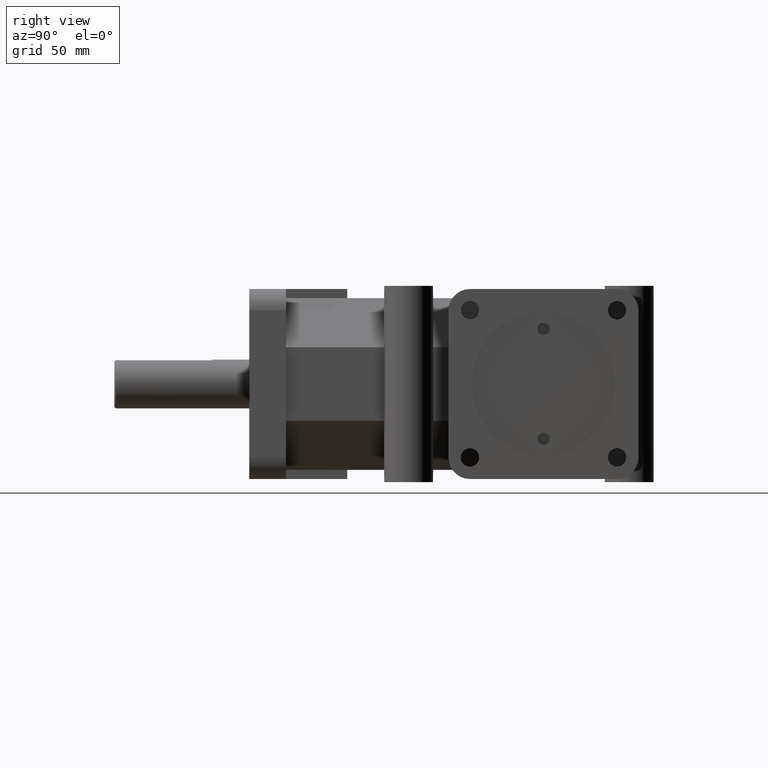
[diagram: clean part render]
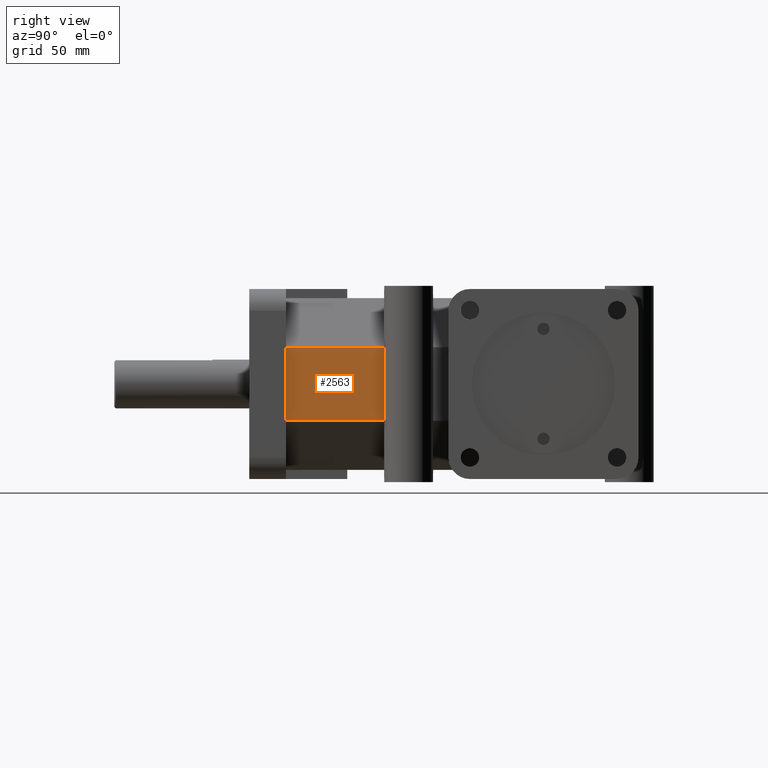
[diagram: same view with one face highlighted and labeled with its STEP entity id]
A machine part, right view. The second image highlights one B-rep face of the part: STEP entity #2563.
In plain terms, the highlighted planar face has unit normal (1, 0, 0).
Its self-contained STEP definition (entity closure, byte-faithful):
#333=FACE_OUTER_BOUND('',#511,.T.);
#511=EDGE_LOOP('',(#2208,#2209,#2210,#2211));
#760=LINE('',#4245,#1010);
#772=LINE('',#4269,#1022);
#780=LINE('',#4285,#1030);
#781=LINE('',#4286,#1031);
#1010=VECTOR('',#3478,1.);
#1022=VECTOR('',#3506,1.);
#1030=VECTOR('',#3524,1.);
#1031=VECTOR('',#3525,1.);
#1263=VERTEX_POINT('',#4203);
#1264=VERTEX_POINT('',#4207);
#1274=VERTEX_POINT('',#4268);
#1277=VERTEX_POINT('',#4284);
#1594=EDGE_CURVE('',#1264,#1263,#760,.T.);
#1606=EDGE_CURVE('',#1264,#1274,#772,.T.);
#1614=EDGE_CURVE('',#1277,#1263,#780,.T.);
#1615=EDGE_CURVE('',#1277,#1274,#781,.T.);
#2208=ORIENTED_EDGE('',*,*,#1594,.T.);
#2209=ORIENTED_EDGE('',*,*,#1614,.F.);
#2210=ORIENTED_EDGE('',*,*,#1615,.T.);
#2211=ORIENTED_EDGE('',*,*,#1606,.F.);
#2418=PLANE('',#2823);
#2563=ADVANCED_FACE('',(#333),#2418,.T.);
#2823=AXIS2_PLACEMENT_3D('',#4283,#3522,#3523);
#3478=DIRECTION('',(0.,0.,1.));
#3506=DIRECTION('',(0.,-1.,0.));
#3522=DIRECTION('center_axis',(1.,0.,0.));
#3523=DIRECTION('ref_axis',(0.,-1.,0.));
#3524=DIRECTION('',(0.,1.,0.));
#3525=DIRECTION('',(0.,0.,-1.));
#4203=CARTESIAN_POINT('',(1.75,2.75,0.75));
#4207=CARTESIAN_POINT('',(1.75,2.75,-0.75));
#4245=CARTESIAN_POINT('',(1.75,2.75,0.));
#4268=CARTESIAN_POINT('',(1.75,0.75,-0.75));
#4269=CARTESIAN_POINT('',(1.75,2.52896341463415,-0.75));
#4283=CARTESIAN_POINT('Origin',(1.75,0.75,0.));
#4284=CARTESIAN_POINT('',(1.75,0.75,0.75));
#4285=CARTESIAN_POINT('',(1.75,2.52896341463415,0.75));
#4286=CARTESIAN_POINT('',(1.75,0.75,0.));